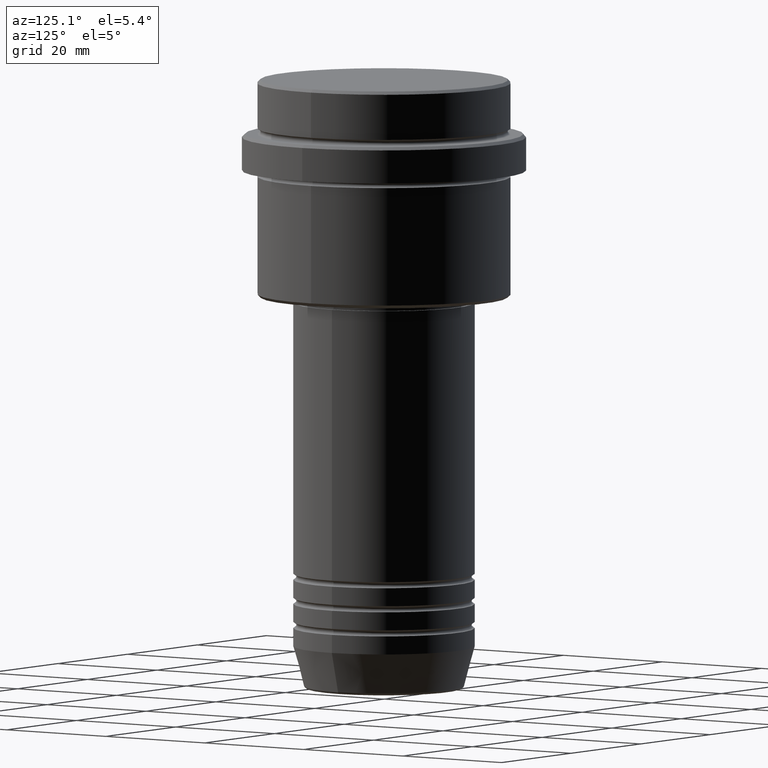
[diagram: clean part render]
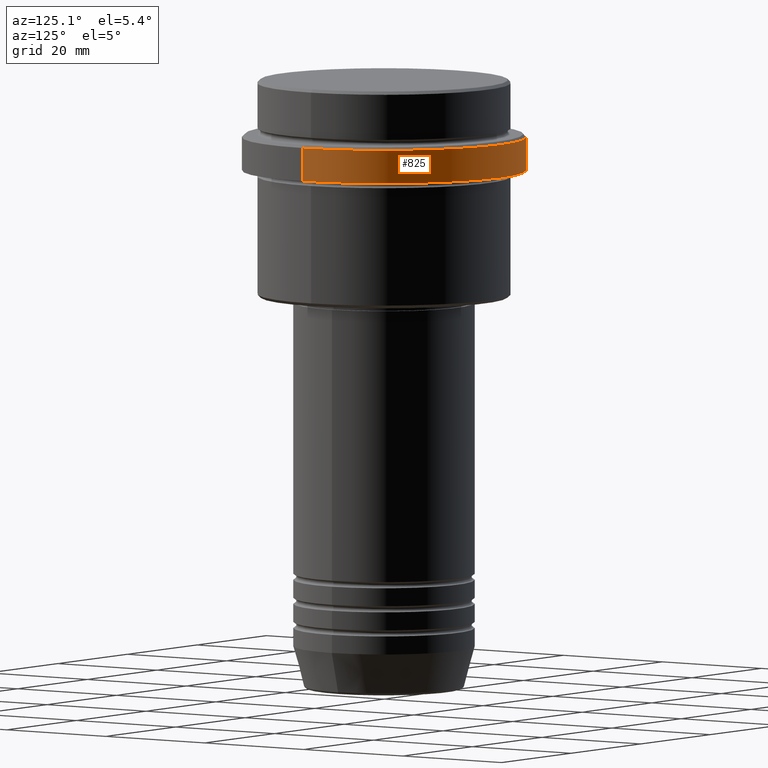
[diagram: same view with one face highlighted and labeled with its STEP entity id]
A machine part, auxiliary view. The second image highlights one B-rep face of the part: STEP entity #825.
In plain terms, the highlighted cylindrical surface (partial cylindrical patch) has radius 23.5 mm, axis along (-0, -0, 1).
Its self-contained STEP definition (entity closure, byte-faithful):
#37 = VECTOR ( 'NONE', #1313, 1000.000000000000000 ) ;
#84 = AXIS2_PLACEMENT_3D ( 'NONE', #1021, #271, #141 ) ;
#120 = LINE ( 'NONE', #332, #37 ) ;
#126 = CARTESIAN_POINT ( 'NONE',  ( -23.50000000000000000, 2.877919977996280320E-15, 0.000000000000000000 ) ) ;
#141 = DIRECTION ( 'NONE',  ( 1.000000000000000000, 0.000000000000000000, 0.000000000000000000 ) ) ;
#177 = VERTEX_POINT ( 'NONE', #607 ) ;
#231 = ORIENTED_EDGE ( 'NONE', *, *, #1406, .T. ) ;
#249 = CYLINDRICAL_SURFACE ( 'NONE', #84, 23.50000000000000000 ) ;
#252 = FACE_OUTER_BOUND ( 'NONE', #1089, .T. ) ;
#271 = DIRECTION ( 'NONE',  ( -0.000000000000000000, -0.000000000000000000, 1.000000000000000000 ) ) ;
#312 = VECTOR ( 'NONE', #764, 1000.000000000000000 ) ;
#332 = CARTESIAN_POINT ( 'NONE',  ( 23.50000000000000000, 0.000000000000000000, 0.000000000000000000 ) ) ;
#441 = LINE ( 'NONE', #126, #312 ) ;
#471 = CARTESIAN_POINT ( 'NONE',  ( 23.50000000000000355, 0.000000000000000000, -15.00000000000000000 ) ) ;
#537 = DIRECTION ( 'NONE',  ( 0.000000000000000000, 0.000000000000000000, -1.000000000000000000 ) ) ;
#607 = CARTESIAN_POINT ( 'NONE',  ( -23.50000000000000000, 2.877919977996280320E-15, -9.499999999999985789 ) ) ;
#622 = VERTEX_POINT ( 'NONE', #837 ) ;
#673 = CIRCLE ( 'NONE', #765, 23.50000000000000000 ) ;
#681 = CARTESIAN_POINT ( 'NONE',  ( 0.000000000000000000, 0.000000000000000000, -15.00000000000000000 ) ) ;
#692 = AXIS2_PLACEMENT_3D ( 'NONE', #681, #693, #1116 ) ;
#693 = DIRECTION ( 'NONE',  ( -0.000000000000000000, -0.000000000000000000, 1.000000000000000000 ) ) ;
#735 = VERTEX_POINT ( 'NONE', #471 ) ;
#764 = DIRECTION ( 'NONE',  ( -0.000000000000000000, -0.000000000000000000, 1.000000000000000000 ) ) ;
#765 = AXIS2_PLACEMENT_3D ( 'NONE', #1199, #537, #1186 ) ;
#777 = ORIENTED_EDGE ( 'NONE', *, *, #1372, .T. ) ;
#801 = EDGE_CURVE ( 'NONE', #735, #1335, #1315, .T. ) ;
#825 = ADVANCED_FACE ( 'NONE', ( #252 ), #249, .T. ) ;
#837 = CARTESIAN_POINT ( 'NONE',  ( 23.50000000000000000, 0.000000000000000000, -9.499999999999985789 ) ) ;
#882 = EDGE_CURVE ( 'NONE', #735, #622, #120, .T. ) ;
#895 = ORIENTED_EDGE ( 'NONE', *, *, #801, .T. ) ;
#1021 = CARTESIAN_POINT ( 'NONE',  ( 0.000000000000000000, 0.000000000000000000, 0.000000000000000000 ) ) ;
#1084 = ORIENTED_EDGE ( 'NONE', *, *, #882, .F. ) ;
#1089 = EDGE_LOOP ( 'NONE', ( #895, #777, #231, #1084 ) ) ;
#1101 = CARTESIAN_POINT ( 'NONE',  ( -23.50000000000000711, 2.877919977996281109E-15, -15.00000000000000000 ) ) ;
#1116 = DIRECTION ( 'NONE',  ( 1.000000000000000000, 0.000000000000000000, 0.000000000000000000 ) ) ;
#1186 = DIRECTION ( 'NONE',  ( 1.000000000000000000, 0.000000000000000000, 0.000000000000000000 ) ) ;
#1199 = CARTESIAN_POINT ( 'NONE',  ( 0.000000000000000000, 0.000000000000000000, -9.499999999999985789 ) ) ;
#1313 = DIRECTION ( 'NONE',  ( -0.000000000000000000, -0.000000000000000000, 1.000000000000000000 ) ) ;
#1315 = CIRCLE ( 'NONE', #692, 23.50000000000000355 ) ;
#1335 = VERTEX_POINT ( 'NONE', #1101 ) ;
#1372 = EDGE_CURVE ( 'NONE', #1335, #177, #441, .T. ) ;
#1406 = EDGE_CURVE ( 'NONE', #177, #622, #673, .T. ) ;